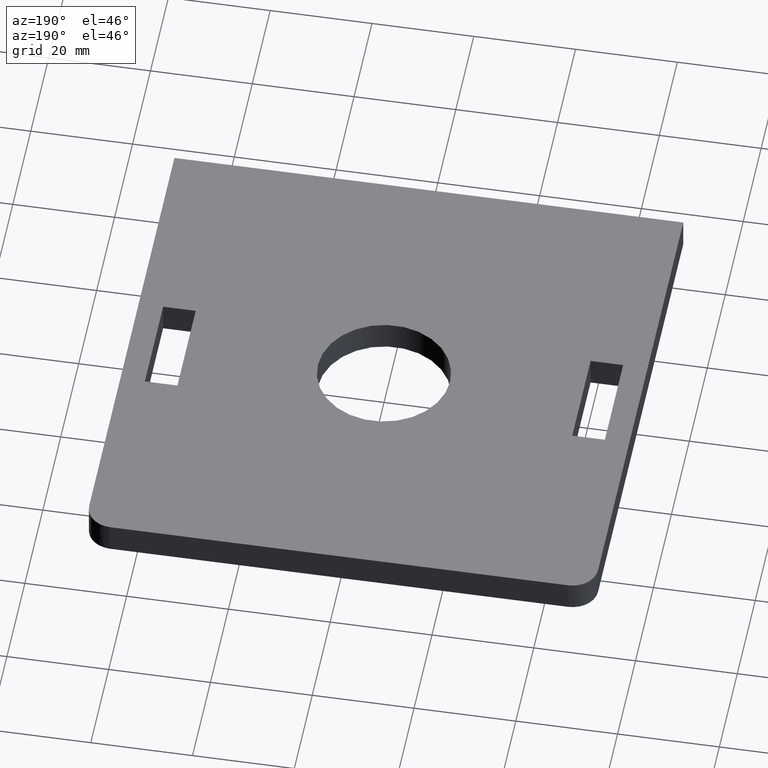
[diagram: clean part render]
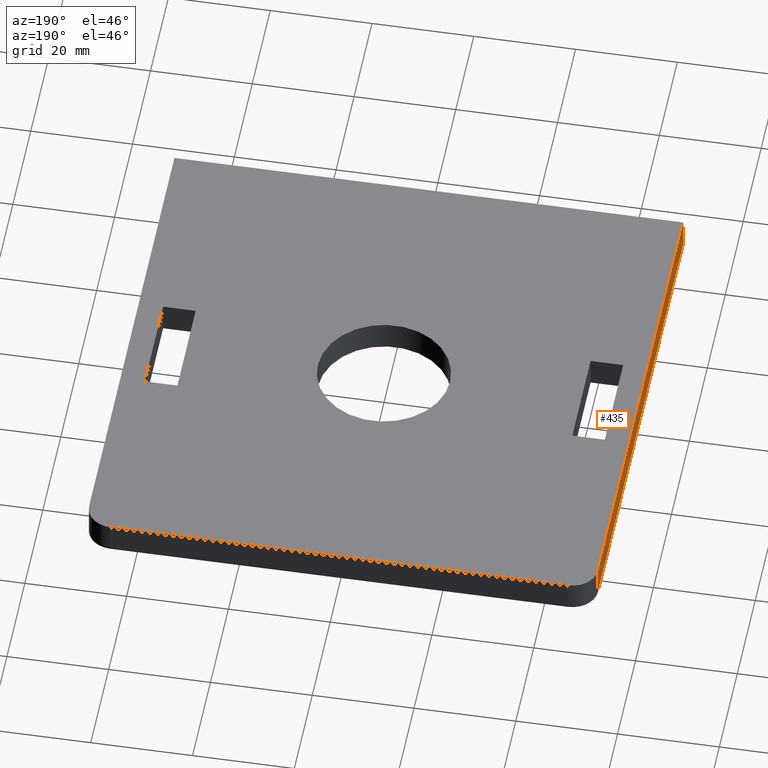
[diagram: same view with one face highlighted and labeled with its STEP entity id]
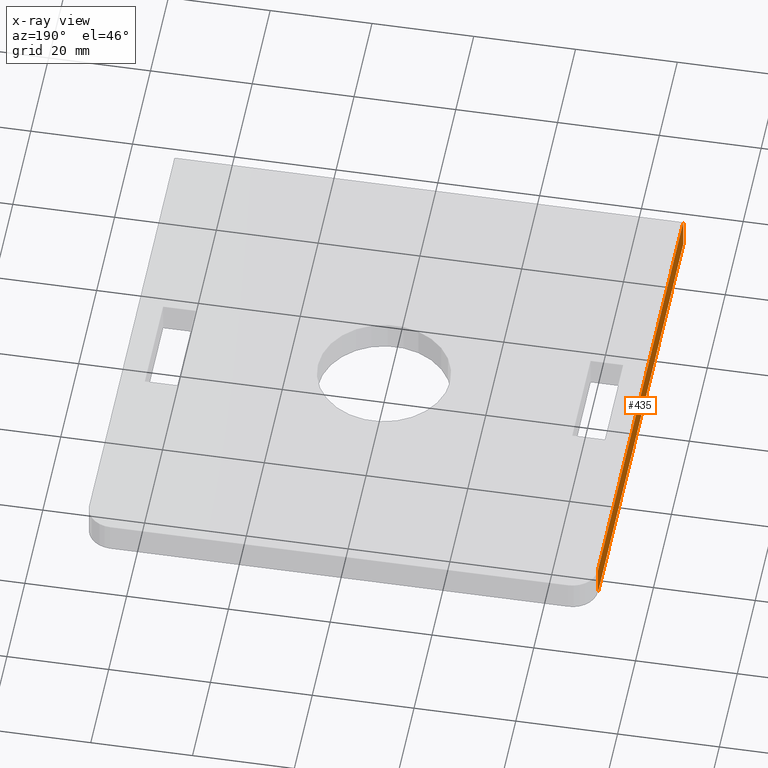
[diagram: x-ray of the same camera — body ghosted, the highlighted face saturated]
A machine part, auxiliary view. The second image highlights one B-rep face of the part: STEP entity #435.
The next image is the same camera in x-ray: the body ghosted, the highlighted face saturated — about 0% of this face is hidden behind the body in this view.
In plain terms, the highlighted planar face has unit normal (-1, -0, 0).
Its self-contained STEP definition (entity closure, byte-faithful):
#23 = VECTOR ( 'NONE', #253, 1000.000000000000000 ) ;
#34 = VECTOR ( 'NONE', #48, 1000.000000000000000 ) ;
#35 = ORIENTED_EDGE ( 'NONE', *, *, #165, .F. ) ;
#48 = DIRECTION ( 'NONE',  ( -1.805559322863035323E-34, -1.000000000000000000, 1.232595164407830946E-32 ) ) ;
#63 = DIRECTION ( 'NONE',  ( 0.000000000000000000, 0.000000000000000000, 1.000000000000000000 ) ) ;
#77 = AXIS2_PLACEMENT_3D ( 'NONE', #521, #313, #63 ) ;
#113 = CARTESIAN_POINT ( 'NONE',  ( -50.00000000000009948, 45.00000000000070344, -5.999999999999561240 ) ) ;
#142 = CARTESIAN_POINT ( 'NONE',  ( -49.99999999999965894, -50.00000000000071054, -5.999999999999561240 ) ) ;
#157 = EDGE_CURVE ( 'NONE', #519, #442, #235, .T. ) ;
#163 = VECTOR ( 'NONE', #559, 1000.000000000000000 ) ;
#165 = EDGE_CURVE ( 'NONE', #580, #442, #543, .T. ) ;
#166 = LINE ( 'NONE', #113, #163 ) ;
#188 = CARTESIAN_POINT ( 'NONE',  ( -49.99999999999965894, 45.00000000000070344, -8.881784197001252323E-13 ) ) ;
#215 = CARTESIAN_POINT ( 'NONE',  ( -49.99999999999993605, -50.00000000000049027, -4.440892098500626162E-13 ) ) ;
#230 = ORIENTED_EDGE ( 'NONE', *, *, #649, .T. ) ;
#235 = LINE ( 'NONE', #142, #461 ) ;
#253 = DIRECTION ( 'NONE',  ( -1.805559322863035323E-34, -1.000000000000000000, 1.232595164407830946E-32 ) ) ;
#270 = CARTESIAN_POINT ( 'NONE',  ( -49.99999999999965894, -50.00000000000071054, -5.999999999999561240 ) ) ;
#291 = ORIENTED_EDGE ( 'NONE', *, *, #157, .T. ) ;
#292 = LINE ( 'NONE', #600, #34 ) ;
#313 = DIRECTION ( 'NONE',  ( -1.000000000000000000, -1.805559322863033398E-34, 0.000000000000000000 ) ) ;
#317 = FACE_OUTER_BOUND ( 'NONE', #406, .T. ) ;
#349 = CARTESIAN_POINT ( 'NONE',  ( -49.99999999999993605, -50.00000000000049027, -4.440892098500626162E-13 ) ) ;
#383 = EDGE_CURVE ( 'NONE', #580, #490, #166, .T. ) ;
#406 = EDGE_LOOP ( 'NONE', ( #35, #544, #230, #291 ) ) ;
#435 = ADVANCED_FACE ( 'NONE', ( #317 ), #514, .T. ) ;
#442 = VERTEX_POINT ( 'NONE', #215 ) ;
#461 = VECTOR ( 'NONE', #539, 1000.000000000000000 ) ;
#490 = VERTEX_POINT ( 'NONE', #518 ) ;
#514 = PLANE ( 'NONE',  #77 ) ;
#518 = CARTESIAN_POINT ( 'NONE',  ( -50.00000000000009948, 45.00000000000070344, -5.999999999999561240 ) ) ;
#519 = VERTEX_POINT ( 'NONE', #270 ) ;
#521 = CARTESIAN_POINT ( 'NONE',  ( -49.99999999999965894, -50.00000000000071054, -5.999999999999561240 ) ) ;
#539 = DIRECTION ( 'NONE',  ( 0.000000000000000000, 0.000000000000000000, 1.000000000000000000 ) ) ;
#543 = LINE ( 'NONE', #349, #23 ) ;
#544 = ORIENTED_EDGE ( 'NONE', *, *, #383, .T. ) ;
#559 = DIRECTION ( 'NONE',  ( -0.000000000000000000, -0.000000000000000000, -1.000000000000000000 ) ) ;
#580 = VERTEX_POINT ( 'NONE', #188 ) ;
#600 = CARTESIAN_POINT ( 'NONE',  ( -49.99999999999965894, -50.00000000000071054, -5.999999999999561240 ) ) ;
#649 = EDGE_CURVE ( 'NONE', #490, #519, #292, .T. ) ;